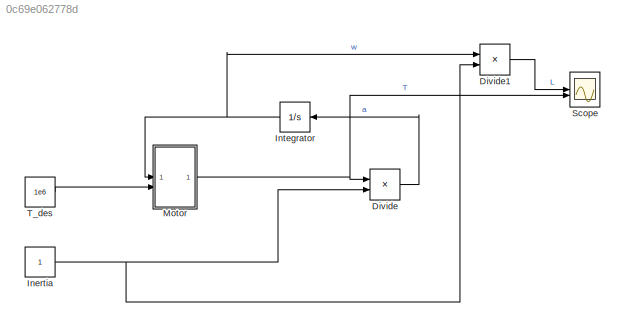
MODEL slx_0c69e062778d
KIND model
CONFIG AbsTol = auto
CONFIG EnableMultiTasking = off
CONFIG FixedStep = auto
CONFIG MaxStep = auto
CONFIG MinStep = auto
CONFIG RelTol = 1e-3
CONFIG SampleTimeConstraint = Unconstrained
CONFIG SolverName = VariableStepAuto
CONFIG StartTime = 0.0
CONFIG StopTime = 10.0
WORKSPACE source: mxarray member
WORKSPACE G: Simulink.Parameter (value not decoded)
BLOCK [Product] Divide
  Inputs = */
BLOCK [Product] Divide1
  Inputs = **
BLOCK [Constant] Inertia
BLOCK [Integrator] Integrator
  NameLocation = top
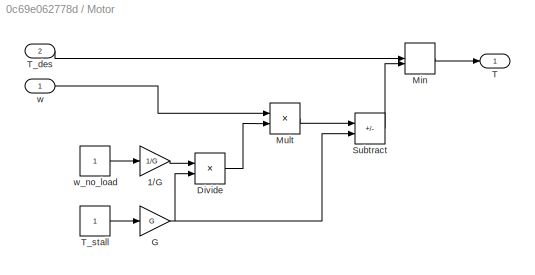
BLOCK [SubSystem] Motor
BLOCK [Gain] Motor/1//G
  Gain = 1/G
BLOCK [Product] Motor/Divide
  Inputs = /*
BLOCK [Gain] Motor/G
  Gain = G
BLOCK [MinMax] Motor/Min
  Inputs = 2
BLOCK [Product] Motor/Mult
  Inputs = **
BLOCK [Sum] Motor/Subtract
  IconShape = rectangular
  Inputs = -+
BLOCK [Outport] Motor/T
BLOCK [Inport] Motor/T_des
  Port = 2
BLOCK [Constant] Motor/T_stall
BLOCK [Inport] Motor/w
BLOCK [Constant] Motor/w_no_load
BLOCK [Scope] Scope
  Floating = off
  NumInputPorts = 2
  ScopeSpecificationString = Simulink.scopes.TimeScopeBlockCfg('CurrentConfiguration', extmgr.ConfigurationSet(extmgr.Configuration('Core','General UI',true),extmgr.Configuration('Core','Source UI',true),extmgr.Configuration('Sources','WiredSimulink',true),extmgr.Configuration('Visuals','Time Domain',true,'SerializedDisplays',{struct('MinYLimReal','-0.125','MaxYLimReal','1.125','YLabelReal','','MinYLimMag','0.00000','MaxYLimM...<+1432ch>
BLOCK [Constant] T_des
  Value = 1e6
LINE Divide1:1 -> Scope:1
LINE Divide:1 -> Integrator:1
NET Inertia:1 -> Divide1:2, Divide:2
NET Integrator:1 -> Divide1:1, Motor:1
LINE Motor/1//G:1 -> Motor/Divide:1
LINE Motor/Divide:1 -> Motor/Mult:2
NET Motor/G:1 -> Motor/Divide:2, Motor/Subtract:2
LINE Motor/Min:1 -> Motor/T:1
LINE Motor/Mult:1 -> Motor/Subtract:1
LINE Motor/Subtract:1 -> Motor/Min:2
LINE Motor/T_des:1 -> Motor/Min:1
LINE Motor/T_stall:1 -> Motor/G:1
LINE Motor/w:1 -> Motor/Mult:1
LINE Motor/w_no_load:1 -> Motor/1//G:1
NET Motor:1 -> Divide:1, Scope:2
LINE T_des:1 -> Motor:2
note: NET lines group one-source signal fan-out (src -> all destinations, sorted); 1:1 wires keep LINE
